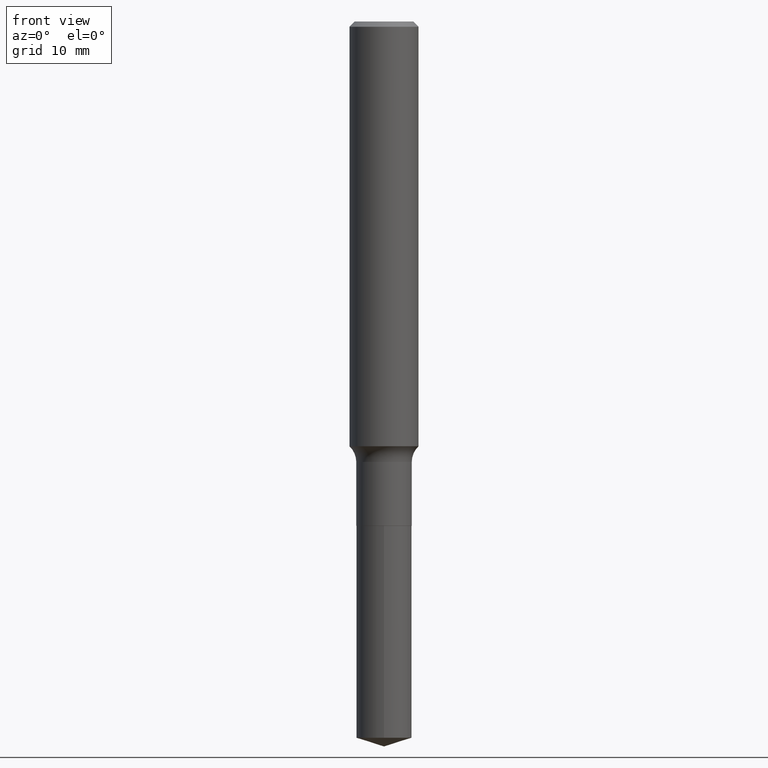
[diagram: clean part render]
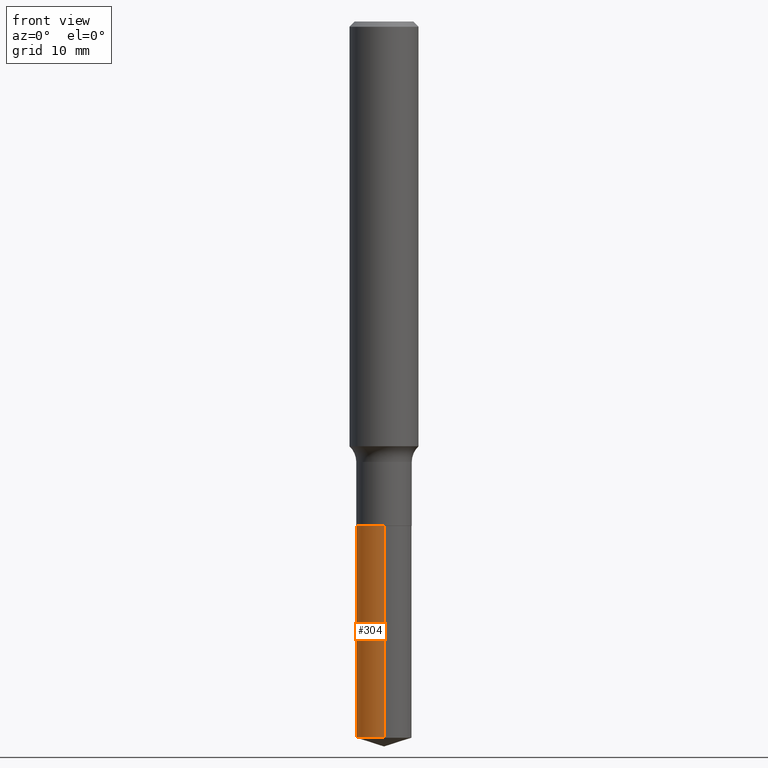
[diagram: same view with one face highlighted and labeled with its STEP entity id]
A machine part, front view. The second image highlights one B-rep face of the part: STEP entity #304.
In plain terms, the highlighted cylindrical surface (edge-blend (fillet) strip) has radius 2.5527 mm, axis along (-0, 0, 1).
Its self-contained STEP definition (entity closure, byte-faithful):
#18 = CARTESIAN_POINT ( 'NONE',  ( 7.140954494389642327E-16, 0.1004999999999936361, -1.826000000000000512 ) ) ;
#20 = CARTESIAN_POINT ( 'NONE',  ( 6.341812827357289971E-29, -9.054576463095092159E-15, -2.593312471717661882 ) ) ;
#34 = CARTESIAN_POINT ( 'NONE',  ( 4.465426040094059556E-29, -6.375444924727584257E-15, -1.826000000000000068 ) ) ;
#36 = DIRECTION ( 'NONE',  ( -2.445401132426348956E-29, 3.491578251517480594E-15, 1.000000000000000000 ) ) ;
#47 = AXIS2_PLACEMENT_3D ( 'NONE', #34, #36, #184 ) ;
#59 = DIRECTION ( 'NONE',  ( -6.982962677686265922E-15, -1.000000000000000000, 2.718256710113694497E-15 ) ) ;
#69 = EDGE_CURVE ( 'NONE', #458, #492, #335, .T. ) ;
#112 = FACE_OUTER_BOUND ( 'NONE', #223, .T. ) ;
#120 = EDGE_CURVE ( 'NONE', #202, #297, #420, .T. ) ;
#184 = DIRECTION ( 'NONE',  ( -6.982962677686265922E-15, -1.000000000000000000, 2.718256710113694497E-15 ) ) ;
#202 = VERTEX_POINT ( 'NONE', #18 ) ;
#203 = EDGE_CURVE ( 'NONE', #492, #297, #484, .T. ) ;
#205 = DIRECTION ( 'NONE',  ( -2.445401132426348956E-29, 3.491578251517480594E-15, 1.000000000000000000 ) ) ;
#223 = EDGE_LOOP ( 'NONE', ( #337, #422, #352, #488 ) ) ;
#232 = CARTESIAN_POINT ( 'NONE',  ( -7.017877491074251076E-16, -0.1005000000000063759, -1.825999999999999845 ) ) ;
#254 = EDGE_CURVE ( 'NONE', #458, #202, #374, .T. ) ;
#273 = CARTESIAN_POINT ( 'NONE',  ( -7.017877491074060763E-16, -0.1005000000000090266, -2.593312471717660994 ) ) ;
#287 = CARTESIAN_POINT ( 'NONE',  ( -7.017877491074251076E-16, -0.1005000000000063759, -1.825999999999999845 ) ) ;
#297 = VERTEX_POINT ( 'NONE', #232 ) ;
#304 = ADVANCED_FACE ( 'NONE', ( #112 ), #378, .T. ) ;
#324 = AXIS2_PLACEMENT_3D ( 'NONE', #481, #367, #59 ) ;
#335 = CIRCLE ( 'NONE', #372, 0.1005000000000000060 ) ;
#337 = ORIENTED_EDGE ( 'NONE', *, *, #254, .F. ) ;
#343 = VECTOR ( 'NONE', #444, 39.37007874015748143 ) ;
#352 = ORIENTED_EDGE ( 'NONE', *, *, #203, .T. ) ;
#367 = DIRECTION ( 'NONE',  ( -2.445401132426348956E-29, 3.491578251517480594E-15, 1.000000000000000000 ) ) ;
#372 = AXIS2_PLACEMENT_3D ( 'NONE', #20, #205, #477 ) ;
#374 = LINE ( 'NONE', #410, #440 ) ;
#378 = CYLINDRICAL_SURFACE ( 'NONE', #47, 0.1005000000000000060 ) ;
#384 = DIRECTION ( 'NONE',  ( -2.445401132426348956E-29, 3.491578251517480594E-15, 1.000000000000000000 ) ) ;
#388 = CARTESIAN_POINT ( 'NONE',  ( 7.140954494389638383E-16, 0.1004999999999909299, -2.593312471717662326 ) ) ;
#410 = CARTESIAN_POINT ( 'NONE',  ( 7.140954494389453000E-16, 0.1004999999999936361, -1.826000000000000512 ) ) ;
#420 = CIRCLE ( 'NONE', #324, 0.1005000000000000060 ) ;
#422 = ORIENTED_EDGE ( 'NONE', *, *, #69, .T. ) ;
#440 = VECTOR ( 'NONE', #384, 39.37007874015748143 ) ;
#444 = DIRECTION ( 'NONE',  ( -2.445401132426348956E-29, 3.491578251517480594E-15, 1.000000000000000000 ) ) ;
#458 = VERTEX_POINT ( 'NONE', #388 ) ;
#477 = DIRECTION ( 'NONE',  ( -6.982962677686265922E-15, -1.000000000000000000, 5.436513420227388995E-15 ) ) ;
#481 = CARTESIAN_POINT ( 'NONE',  ( 4.465426040094059556E-29, -6.375444924727584257E-15, -1.826000000000000068 ) ) ;
#484 = LINE ( 'NONE', #287, #343 ) ;
#488 = ORIENTED_EDGE ( 'NONE', *, *, #120, .F. ) ;
#492 = VERTEX_POINT ( 'NONE', #273 ) ;